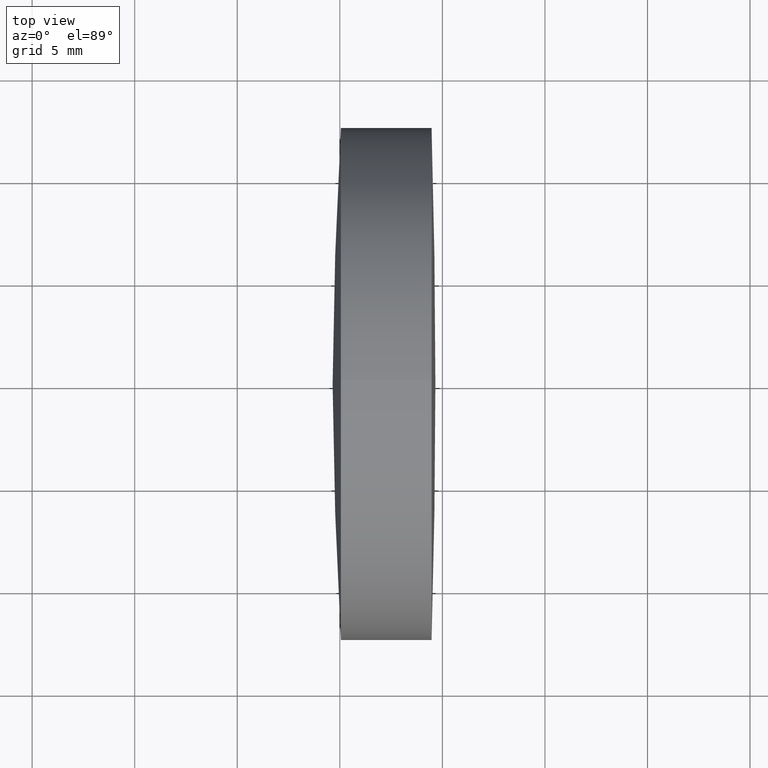
[diagram: clean part render]
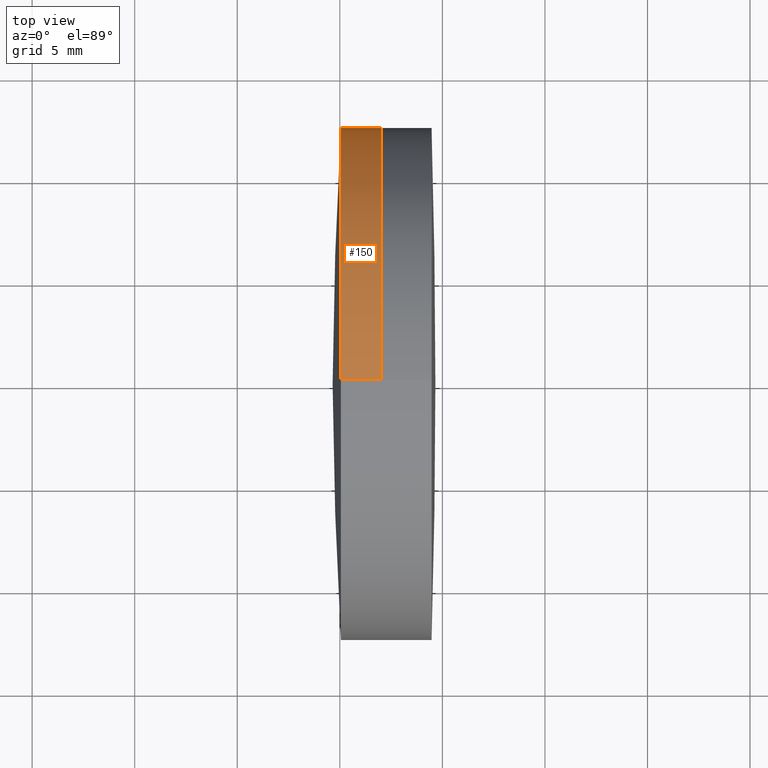
[diagram: same view with one face highlighted and labeled with its STEP entity id]
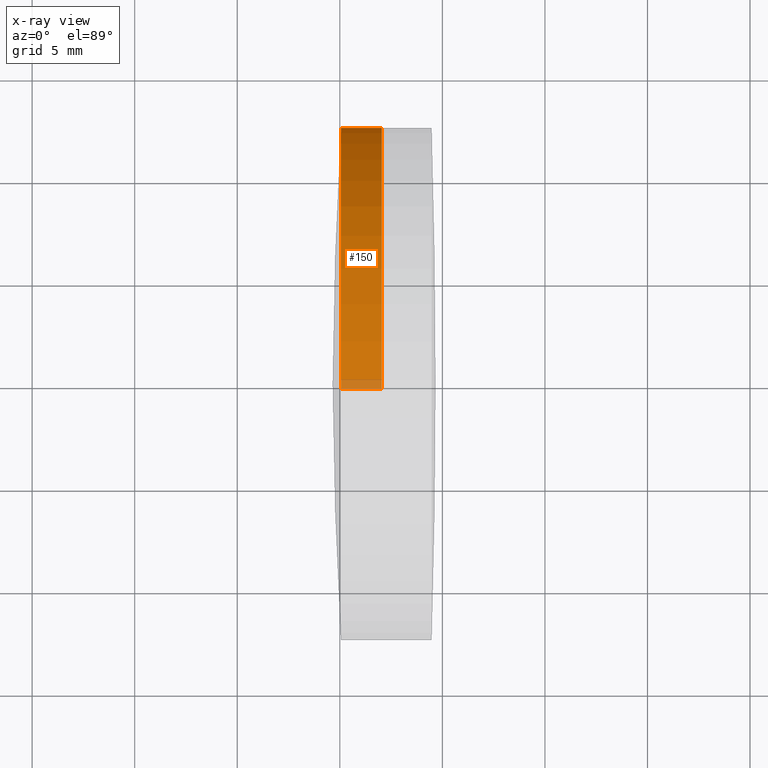
[diagram: x-ray of the same camera — body ghosted, the highlighted face saturated]
A machine part, top view. The second image highlights one B-rep face of the part: STEP entity #150.
The next image is the same camera in x-ray: the body ghosted, the highlighted face saturated — about 3% of this face is hidden behind the body in this view.
In plain terms, the highlighted cylindrical surface (partial cylindrical patch) has radius 12.5 mm, axis along (-1, -0, -0).
Its self-contained STEP definition (entity closure, byte-faithful):
#29 = ORIENTED_EDGE ( 'NONE', *, *, #226, .T. ) ;
#31 = CARTESIAN_POINT ( 'NONE',  ( 142.0467968014847300, 1.530808498934191500E-015, -12.50000000000000000 ) ) ;
#56 = CARTESIAN_POINT ( 'NONE',  ( -9.702612178336682500, 0.0000000000000000000, 0.0000000000000000000 ) ) ;
#58 = DIRECTION ( 'NONE',  ( 0.0000000000000000000, 0.0000000000000000000, 1.000000000000000000 ) ) ;
#65 = CIRCLE ( 'NONE', #91, 12.50000000000000000 ) ;
#71 = DIRECTION ( 'NONE',  ( 0.0000000000000000000, 0.0000000000000000000, 1.000000000000000000 ) ) ;
#82 = VECTOR ( 'NONE', #334, 1000.000000000000000 ) ;
#91 = AXIS2_PLACEMENT_3D ( 'NONE', #92, #285, #58 ) ;
#92 = CARTESIAN_POINT ( 'NONE',  ( 142.0467968014847300, 0.0000000000000000000, 0.0000000000000000000 ) ) ;
#101 = LINE ( 'NONE', #205, #82 ) ;
#123 = CARTESIAN_POINT ( 'NONE',  ( 140.0534823293508600, 0.0000000000000000000, 0.0000000000000000000 ) ) ;
#135 = DIRECTION ( 'NONE',  ( -1.000000000000000000, -0.0000000000000000000, -0.0000000000000000000 ) ) ;
#150 = ADVANCED_FACE ( 'NONE', ( #345 ), #170, .T. ) ;
#155 = AXIS2_PLACEMENT_3D ( 'NONE', #56, #135, #71 ) ;
#156 = CARTESIAN_POINT ( 'NONE',  ( 142.0467968014847300, 0.0000000000000000000, 12.50000000000000000 ) ) ;
#164 = ORIENTED_EDGE ( 'NONE', *, *, #321, .F. ) ;
#167 = AXIS2_PLACEMENT_3D ( 'NONE', #123, #254, #253 ) ;
#170 = CYLINDRICAL_SURFACE ( 'NONE', #155, 12.50000000000000000 ) ;
#175 = EDGE_CURVE ( 'NONE', #312, #200, #101, .T. ) ;
#180 = VERTEX_POINT ( 'NONE', #31 ) ;
#199 = CARTESIAN_POINT ( 'NONE',  ( -9.702612178336682500, 1.530808498934191500E-015, -12.50000000000000000 ) ) ;
#200 = VERTEX_POINT ( 'NONE', #203 ) ;
#203 = CARTESIAN_POINT ( 'NONE',  ( 140.0534823293508600, 0.0000000000000000000, 12.50000000000007300 ) ) ;
#205 = CARTESIAN_POINT ( 'NONE',  ( -9.702612178336682500, 0.0000000000000000000, 12.50000000000000000 ) ) ;
#220 = DIRECTION ( 'NONE',  ( -1.000000000000000000, -0.0000000000000000000, -0.0000000000000000000 ) ) ;
#226 = EDGE_CURVE ( 'NONE', #312, #180, #65, .T. ) ;
#231 = EDGE_CURVE ( 'NONE', #180, #244, #344, .T. ) ;
#236 = ORIENTED_EDGE ( 'NONE', *, *, #175, .F. ) ;
#244 = VERTEX_POINT ( 'NONE', #265 ) ;
#248 = CIRCLE ( 'NONE', #167, 12.50000000000000000 ) ;
#253 = DIRECTION ( 'NONE',  ( 0.0000000000000000000, 0.0000000000000000000, 1.000000000000000000 ) ) ;
#254 = DIRECTION ( 'NONE',  ( -1.000000000000000000, -0.0000000000000000000, -0.0000000000000000000 ) ) ;
#255 = EDGE_LOOP ( 'NONE', ( #29, #286, #164, #236 ) ) ;
#265 = CARTESIAN_POINT ( 'NONE',  ( 140.0534823293508600, 1.530808498934200400E-015, -12.50000000000007300 ) ) ;
#285 = DIRECTION ( 'NONE',  ( -1.000000000000000000, -0.0000000000000000000, -0.0000000000000000000 ) ) ;
#286 = ORIENTED_EDGE ( 'NONE', *, *, #231, .T. ) ;
#312 = VERTEX_POINT ( 'NONE', #156 ) ;
#321 = EDGE_CURVE ( 'NONE', #200, #244, #248, .T. ) ;
#334 = DIRECTION ( 'NONE',  ( -1.000000000000000000, -0.0000000000000000000, -0.0000000000000000000 ) ) ;
#343 = VECTOR ( 'NONE', #220, 1000.000000000000000 ) ;
#344 = LINE ( 'NONE', #199, #343 ) ;
#345 = FACE_OUTER_BOUND ( 'NONE', #255, .T. ) ;